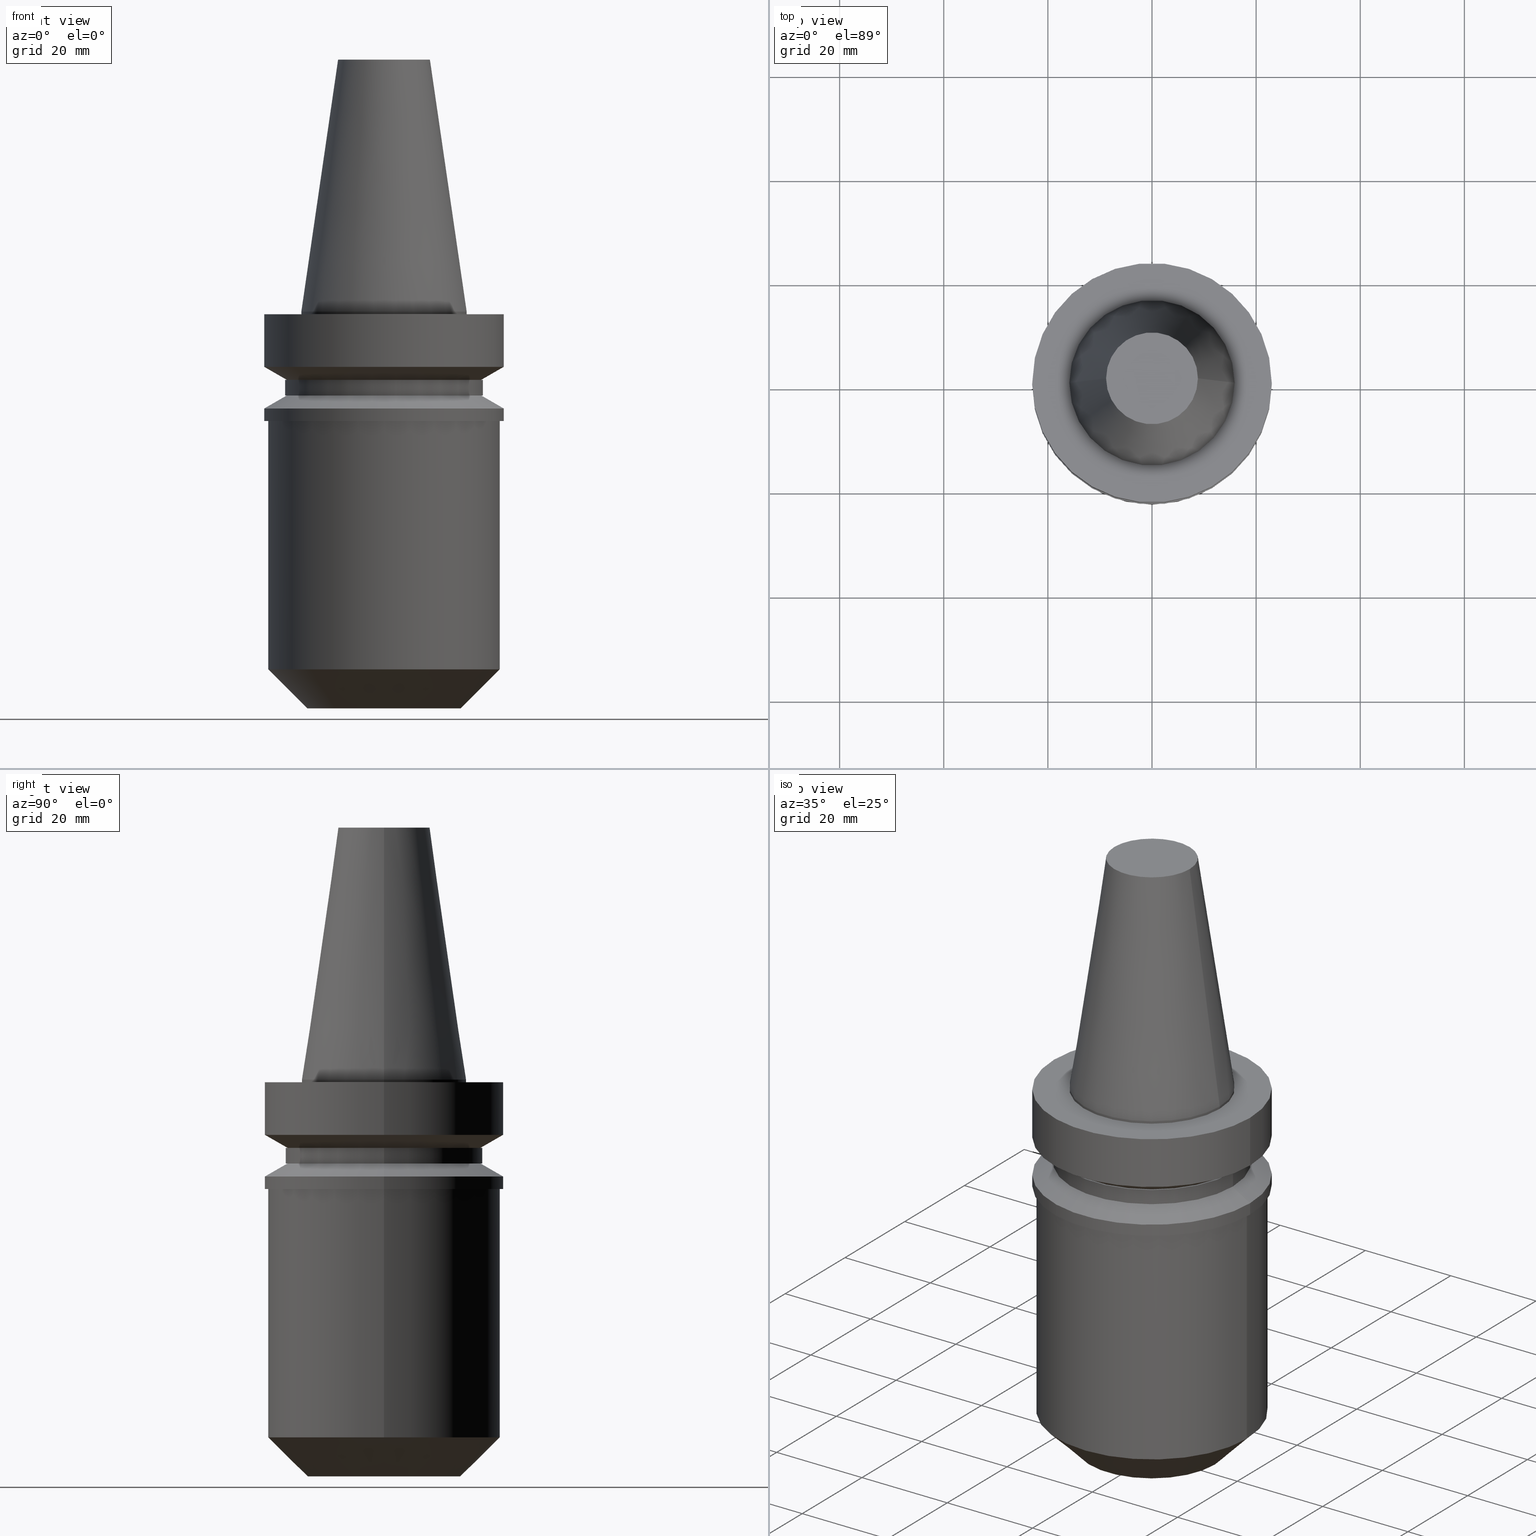
[diagram: canonical four-view strip — front | top / right | iso, engineering-drawing reading convention]
A machine part, canonical four-view strip (front | top / right | iso — engineering-drawing reading convention). The complete STEP part file that produces these views, byte-faithful:
ISO-10303-21;
HEADER;
FILE_DESCRIPTION (( 'STEP AP203' ),
    '1' );
FILE_NAME ('BBT30-EM_750-3.STEP',
    '2022-02-22T21:22:29',
    ( '' ),
    ( '' ),
    'SwSTEP 2.0',
    'SolidWorks 2021',
    '' );
FILE_SCHEMA (( 'CONFIG_CONTROL_DESIGN' ));
ENDSEC;

DATA;
#1 = DIRECTION ( 'NONE',  ( -1.000000000000000000, 0.000000000000000000, 0.000000000000000000 ) ) ;
#2 = CIRCLE ( 'NONE', #198, 23.00000000000000711 ) ;
#3 = VERTEX_POINT ( 'NONE', #55 ) ;
#4 = EDGE_LOOP ( 'NONE', ( #701, #335, #399, #51 ) ) ;
#5 = AXIS2_PLACEMENT_3D ( 'NONE', #263, #88, #95 ) ;
#6 = AXIS2_PLACEMENT_3D ( 'NONE', #618, #242, #553 ) ;
#7 = EDGE_LOOP ( 'NONE', ( #320, #161, #573, #139 ) ) ;
#8 = DIRECTION ( 'NONE',  ( -0.000000000000000000, -0.000000000000000000, 1.000000000000000000 ) ) ;
#9 = CARTESIAN_POINT ( 'NONE',  ( 9.524999999999998579, 0.000000000000000000, -20.99999999999999645 ) ) ;
#10 = PRODUCT ( 'BBT30-EM_750-3', 'BBT30-EM_750-3', '', ( #609 ) ) ;
#11 = DIRECTION ( 'NONE',  ( -0.000000000000000000, -0.000000000000000000, 1.000000000000000000 ) ) ;
#12 = DIRECTION ( 'NONE',  ( 1.000000000000000000, 0.000000000000000000, 0.000000000000000000 ) ) ;
#13 = ADVANCED_FACE ( 'NONE', ( #230 ), #358, .T. ) ;
#14 = DIRECTION ( 'NONE',  ( -1.000000000000000000, 0.000000000000000000, -0.000000000000000000 ) ) ;
#15 = AXIS2_PLACEMENT_3D ( 'NONE', #455, #93, #159 ) ;
#16 = CC_DESIGN_APPROVAL ( #49, ( #197 ) ) ;
#17 = LINE ( 'NONE', #666, #692 ) ;
#18 = CARTESIAN_POINT ( 'NONE',  ( -19.00000000000000000, 2.326828918379970970E-15, -16.10000000000000142 ) ) ;
#19 = AXIS2_PLACEMENT_3D ( 'NONE', #192, #615, #563 ) ;
#20 = VERTEX_POINT ( 'NONE', #773 ) ;
#21 = DIRECTION ( 'NONE',  ( -0.000000000000000000, -0.000000000000000000, 1.000000000000000000 ) ) ;
#22 = CARTESIAN_POINT ( 'NONE',  ( 0.000000000000000000, 0.000000000000000000, -20.99999999999999645 ) ) ;
#23 = ORIENTED_EDGE ( 'NONE', *, *, #261, .F. ) ;
#24 = EDGE_CURVE ( 'NONE', #419, #284, #172, .T. ) ;
#25 = PERSON_AND_ORGANIZATION ( #57, #472 ) ;
#26 = DIRECTION ( 'NONE',  ( -1.000000000000000000, 0.000000000000000000, 0.000000000000000000 ) ) ;
#27 = FACE_OUTER_BOUND ( 'NONE', #83, .T. ) ;
#28 = EDGE_LOOP ( 'NONE', ( #385, #763, #339, #741 ) ) ;
#29 = LOCAL_TIME ( 15, 22, 29.00000000000000000, #86 ) ;
#30 = LINE ( 'NONE', #204, #265 ) ;
#31 = ORIENTED_EDGE ( 'NONE', *, *, #163, .F. ) ;
#32 = CARTESIAN_POINT ( 'NONE',  ( 19.00000000000000000, 0.000000000000000000, -13.10028401263362063 ) ) ;
#33 = LINE ( 'NONE', #269, #523 ) ;
#34 = ORIENTED_EDGE ( 'NONE', *, *, #289, .T. ) ;
#35 = CARTESIAN_POINT ( 'NONE',  ( -23.00000000000000000, 2.816687638038912746E-15, -0.5000000000000004441 ) ) ;
#36 = EDGE_CURVE ( 'NONE', #300, #665, #734, .T. ) ;
#37 = ORIENTED_EDGE ( 'NONE', *, *, #221, .F. ) ;
#38 = APPROVAL_STATUS ( 'not_yet_approved' ) ;
#39 = CARTESIAN_POINT ( 'NONE',  ( 0.000000000000000000, 0.000000000000000000, 0.000000000000000000 ) ) ;
#40 = DIRECTION ( 'NONE',  ( 1.000000000000000000, 0.000000000000000000, 0.000000000000000000 ) ) ;
#41 = ORIENTED_EDGE ( 'NONE', *, *, #68, .F. ) ;
#42 = AXIS2_PLACEMENT_3D ( 'NONE', #400, #641, #510 ) ;
#43 = CARTESIAN_POINT ( 'NONE',  ( -9.524999999999998579, 1.166476076187853627E-15, 0.000000000000000000 ) ) ;
#44 = ORIENTED_EDGE ( 'NONE', *, *, #500, .T. ) ;
#45 = EDGE_CURVE ( 'NONE', #583, #280, #145, .T. ) ;
#46 = CARTESIAN_POINT ( 'NONE',  ( 9.525000000000000355, 0.000000000000000000, -76.20000000000000284 ) ) ;
#47 = CARTESIAN_POINT ( 'NONE',  ( 0.000000000000000000, 0.000000000000000000, -20.99999999999999645 ) ) ;
#48 = MANIFOLD_SOLID_BREP ( 'EM', #421 ) ;
#49 = APPROVAL ( #38, 'UNSPECIFIED' ) ;
#50 = DIRECTION ( 'NONE',  ( -0.000000000000000000, -0.000000000000000000, 1.000000000000000000 ) ) ;
#51 = ORIENTED_EDGE ( 'NONE', *, *, #538, .F. ) ;
#52 = CARTESIAN_POINT ( 'NONE',  ( 0.000000000000000000, 0.000000000000000000, 0.000000000000000000 ) ) ;
#53 = DIRECTION ( 'NONE',  ( 0.000000000000000000, -0.000000000000000000, 1.000000000000000000 ) ) ;
#54 = EDGE_CURVE ( 'NONE', #3, #381, #345, .T. ) ;
#55 = CARTESIAN_POINT ( 'NONE',  ( 15.87500000000000000, 0.000000000000000000, -0.5000000000000004441 ) ) ;
#56 = CARTESIAN_POINT ( 'NONE',  ( 15.87500000000000000, 1.944126793646423238E-15, 0.000000000000000000 ) ) ;
#57 = PERSON ( 'UNSPECIFIED', 'UNSPECIFIED', 'UNSPECIFIED', ('UNSPECIFIED'), ('UNSPECIFIED'), ('UNSPECIFIED') ) ;
#58 = EDGE_LOOP ( 'NONE', ( #23, #643, #698, #466 ) ) ;
#59 = ORIENTED_EDGE ( 'NONE', *, *, #735, .F. ) ;
#60 = CIRCLE ( 'NONE', #581, 23.00000000000000000 ) ;
#61 = CC_DESIGN_APPROVAL ( #749, ( #152 ) ) ;
#62 = VERTEX_POINT ( 'NONE', #591 ) ;
#63 = DIRECTION ( 'NONE',  ( -0.000000000000000000, -0.000000000000000000, 1.000000000000000000 ) ) ;
#64 = VECTOR ( 'NONE', #283, 1000.000000000000000 ) ;
#65 = LINE ( 'NONE', #307, #543 ) ;
#66 = CIRCLE ( 'NONE', #461, 8.816600212367498912 ) ;
#67 = CARTESIAN_POINT ( 'NONE',  ( 22.22500000000000142, 0.000000000000000000, -68.70000000000000284 ) ) ;
#68 = EDGE_CURVE ( 'NONE', #544, #532, #108, .T. ) ;
#69 = CARTESIAN_POINT ( 'NONE',  ( -9.524999999999998579, 1.166476076187853627E-15, -20.99999999999999645 ) ) ;
#70 = CARTESIAN_POINT ( 'NONE',  ( 23.00000000000000000, 0.000000000000000000, -18.60014200631680836 ) ) ;
#71 = EDGE_CURVE ( 'NONE', #381, #722, #393, .T. ) ;
#72 = CARTESIAN_POINT ( 'NONE',  ( 0.000000000000000000, 0.000000000000000000, -76.20000000000000284 ) ) ;
#73 = ORIENTED_EDGE ( 'NONE', *, *, #500, .F. ) ;
#74 = DIRECTION ( 'NONE',  ( 1.000000000000000000, 0.000000000000000000, 0.000000000000000000 ) ) ;
#75 = VECTOR ( 'NONE', #319, 1000.000000000000000 ) ;
#76 = EDGE_CURVE ( 'NONE', #146, #476, #747, .T. ) ;
#77 = ORIENTED_EDGE ( 'NONE', *, *, #211, .T. ) ;
#78 = DATE_AND_TIME ( #451, #350 ) ;
#79 = DIRECTION ( 'NONE',  ( -0.000000000000000000, -0.000000000000000000, 1.000000000000000000 ) ) ;
#80 = EDGE_LOOP ( 'NONE', ( #694, #422, #602, #34 ) ) ;
#81 = CARTESIAN_POINT ( 'NONE',  ( 0.000000000000000000, 0.000000000000000000, -13.10028401263362063 ) ) ;
#82 = CARTESIAN_POINT ( 'NONE',  ( 0.000000000000000000, 0.000000000000000000, 48.39999999999998437 ) ) ;
#83 = EDGE_LOOP ( 'NONE', ( #59, #254, #295, #212 ) ) ;
#84 = CIRCLE ( 'NONE', #531, 22.22500000000000142 ) ;
#85 = LOCAL_TIME ( 15, 22, 29.00000000000000000, #579 ) ;
#86 = COORDINATED_UNIVERSAL_TIME_OFFSET ( 6, 0, .BEHIND. ) ;
#87 = CARTESIAN_POINT ( 'NONE',  ( -23.00000000000000000, 2.816687638038912746E-15, -18.60014200631680836 ) ) ;
#88 = DIRECTION ( 'NONE',  ( -0.000000000000000000, -0.000000000000000000, 1.000000000000000000 ) ) ;
#89 = APPLICATION_CONTEXT ( 'configuration controlled 3d designs of mechanical parts and assemblies' ) ;
#90 = VECTOR ( 'NONE', #347, 1000.000000000000114 ) ;
#91 = EDGE_LOOP ( 'NONE', ( #178, #568, #726, #662 ) ) ;
#92 = AXIS2_PLACEMENT_3D ( 'NONE', #315, #445, #624 ) ;
#93 = DIRECTION ( 'NONE',  ( -0.000000000000000000, -0.000000000000000000, 1.000000000000000000 ) ) ;
#94 = EDGE_CURVE ( 'NONE', #3, #769, #355, .T. ) ;
#95 = DIRECTION ( 'NONE',  ( 1.000000000000000000, 0.000000000000000000, 0.000000000000000000 ) ) ;
#96 = ORIENTED_EDGE ( 'NONE', *, *, #630, .F. ) ;
#97 = PERSON_AND_ORGANIZATION_ROLE ( 'classification_officer' ) ;
#98 = DIRECTION ( 'NONE',  ( 0.000000000000000000, 0.000000000000000000, -1.000000000000000000 ) ) ;
#99 = CC_DESIGN_PERSON_AND_ORGANIZATION_ASSIGNMENT ( #574, #382, ( #152 ) ) ;
#100 = CARTESIAN_POINT ( 'NONE',  ( 0.000000000000000000, 0.000000000000000000, 48.39999999999998437 ) ) ;
#101 = ORIENTED_EDGE ( 'NONE', *, *, #630, .T. ) ;
#102 = VECTOR ( 'NONE', #497, 1000.000000000000000 ) ;
#103 = DIRECTION ( 'NONE',  ( 1.000000000000000000, 0.000000000000000000, 0.000000000000000000 ) ) ;
#104 = FACE_OUTER_BOUND ( 'NONE', #401, .T. ) ;
#105 = ORIENTED_EDGE ( 'NONE', *, *, #412, .T. ) ;
#106 = EDGE_CURVE ( 'NONE', #564, #121, #430, .T. ) ;
#107 = CIRCLE ( 'NONE', #546, 22.22500000000000142 ) ;
#108 = CIRCLE ( 'NONE', #344, 9.524999999999998579 ) ;
#109 = CIRCLE ( 'NONE', #547, 23.00000000000000000 ) ;
#110 = CARTESIAN_POINT ( 'NONE',  ( 0.000000000000000000, 0.000000000000000000, -16.09999999999999076 ) ) ;
#111 = DIRECTION ( 'NONE',  ( 1.000000000000000000, 0.000000000000000000, 0.000000000000000000 ) ) ;
#112 = ORIENTED_EDGE ( 'NONE', *, *, #774, .T. ) ;
#113 = FACE_OUTER_BOUND ( 'NONE', #80, .T. ) ;
#114 = AXIS2_PLACEMENT_3D ( 'NONE', #39, #332, #26 ) ;
#115 = AXIS2_PLACEMENT_3D ( 'NONE', #314, #616, #558 ) ;
#116 = LINE ( 'NONE', #56, #189 ) ;
#117 = EDGE_LOOP ( 'NONE', ( #687, #542 ) ) ;
#118 = DIRECTION ( 'NONE',  ( 0.000000000000000000, 0.000000000000000000, -1.000000000000000000 ) ) ;
#119 = EDGE_CURVE ( 'NONE', #638, #343, #667, .T. ) ;
#120 = ORIENTED_EDGE ( 'NONE', *, *, #515, .F. ) ;
#121 = VERTEX_POINT ( 'NONE', #67 ) ;
#122 = VERTEX_POINT ( 'NONE', #18 ) ;
#123 = ORIENTED_EDGE ( 'NONE', *, *, #54, .F. ) ;
#124 = DIRECTION ( 'NONE',  ( -0.8660254037844344888, 0.000000000000000000, -0.5000000000000072164 ) ) ;
#125 = DIRECTION ( 'NONE',  ( -0.000000000000000000, -0.000000000000000000, 1.000000000000000000 ) ) ;
#126 = CIRCLE ( 'NONE', #565, 15.87500000000000000 ) ;
#127 = SECURITY_CLASSIFICATION ( '', '', #680 ) ;
#128 = FACE_BOUND ( 'NONE', #738, .T. ) ;
#129 = ADVANCED_FACE ( 'NONE', ( #371 ), #191, .T. ) ;
#130 = DIRECTION ( 'NONE',  ( 1.000000000000000000, 0.000000000000000000, 0.000000000000000000 ) ) ;
#131 = AXIS2_PLACEMENT_3D ( 'NONE', #567, #572, #40 ) ;
#132 = DIRECTION ( 'NONE',  ( -0.000000000000000000, -0.000000000000000000, 1.000000000000000000 ) ) ;
#133 = DIRECTION ( 'NONE',  ( -0.000000000000000000, -0.000000000000000000, 1.000000000000000000 ) ) ;
#134 = CARTESIAN_POINT ( 'NONE',  ( 0.000000000000000000, 0.000000000000000000, -0.5000000000000004441 ) ) ;
#135 = CYLINDRICAL_SURFACE ( 'NONE', #310, 22.99999999999999645 ) ;
#136 = CARTESIAN_POINT ( 'NONE',  ( 0.000000000000000000, 0.000000000000000000, 0.000000000000000000 ) ) ;
#137 = EDGE_CURVE ( 'NONE', #635, #343, #281, .T. ) ;
#138 = CARTESIAN_POINT ( 'NONE',  ( 0.000000000000000000, 0.000000000000000000, -0.5000000000000004441 ) ) ;
#139 = ORIENTED_EDGE ( 'NONE', *, *, #106, .F. ) ;
#140 = DESIGN_CONTEXT ( 'detailed design', #89, 'design' ) ;
#141 = APPROVAL_DATE_TIME ( #326, #749 ) ;
#142 = DIRECTION ( 'NONE',  ( 1.000000000000000000, 0.000000000000000000, 0.000000000000000000 ) ) ;
#143 = EDGE_CURVE ( 'NONE', #182, #650, #447, .T. ) ;
#144 = DIRECTION ( 'NONE',  ( 1.000000000000000000, 0.000000000000000000, 0.000000000000000000 ) ) ;
#145 = CIRCLE ( 'NONE', #569, 19.00000000000000000 ) ;
#146 = VERTEX_POINT ( 'NONE', #740 ) ;
#147 = PERSON_AND_ORGANIZATION_ROLE ( 'design_supplier' ) ;
#148 = DIRECTION ( 'NONE',  ( 0.000000000000000000, 0.000000000000000000, -1.000000000000000000 ) ) ;
#149 = EDGE_LOOP ( 'NONE', ( #516, #44, #236, #123 ) ) ;
#150 = FACE_OUTER_BOUND ( 'NONE', #91, .T. ) ;
#151 = ORIENTED_EDGE ( 'NONE', *, *, #188, .F. ) ;
#152 = PRODUCT_DEFINITION_FORMATION_WITH_SPECIFIED_SOURCE ( 'ANY', '', #10, .NOT_KNOWN. ) ;
#153 = ADVANCED_FACE ( 'NONE', ( #27 ), #432, .T. ) ;
#154 = APPROVAL_DATE_TIME ( #276, #49 ) ;
#155 = DIRECTION ( 'NONE',  ( -1.000000000000000000, 0.000000000000000000, -0.000000000000000000 ) ) ;
#156 = CARTESIAN_POINT ( 'NONE',  ( 0.000000000000000000, 0.000000000000000000, 48.39999999999999858 ) ) ;
#157 = ORIENTED_EDGE ( 'NONE', *, *, #483, .F. ) ;
#158 = DATE_AND_TIME ( #391, #494 ) ;
#159 = DIRECTION ( 'NONE',  ( 1.000000000000000000, 0.000000000000000000, 0.000000000000000000 ) ) ;
#160 = DIRECTION ( 'NONE',  ( 1.000000000000000000, 0.000000000000000000, 0.000000000000000000 ) ) ;
#161 = ORIENTED_EDGE ( 'NONE', *, *, #711, .T. ) ;
#162 = CARTESIAN_POINT ( 'NONE',  ( 0.000000000000000000, 0.000000000000000000, 48.39999999999998437 ) ) ;
#163 = EDGE_CURVE ( 'NONE', #564, #20, #435, .T. ) ;
#164 = EDGE_LOOP ( 'NONE', ( #487, #157 ) ) ;
#165 = FACE_BOUND ( 'NONE', #363, .T. ) ;
#166 = DIRECTION ( 'NONE',  ( 1.000000000000000000, 0.000000000000000000, 0.000000000000000000 ) ) ;
#167 = VERTEX_POINT ( 'NONE', #249 ) ;
#168 = AXIS2_PLACEMENT_3D ( 'NONE', #685, #148, #384 ) ;
#169 = VECTOR ( 'NONE', #556, 1000.000000000000000 ) ;
#170 = ORIENTED_EDGE ( 'NONE', *, *, #137, .F. ) ;
#171 = DIRECTION ( 'NONE',  ( 0.000000000000000000, -0.000000000000000000, 1.000000000000000000 ) ) ;
#172 = LINE ( 'NONE', #485, #486 ) ;
#173 = ADVANCED_FACE ( 'NONE', ( #257, #437 ), #559, .F. ) ;
#174 = PLANE ( 'NONE',  #619 ) ;
#175 = VECTOR ( 'NONE', #124, 1000.000000000000000 ) ;
#176 = DIRECTION ( 'NONE',  ( -0.000000000000000000, -0.000000000000000000, 1.000000000000000000 ) ) ;
#177 = DIRECTION ( 'NONE',  ( 1.000000000000000000, 0.000000000000000000, 0.000000000000000000 ) ) ;
#178 = ORIENTED_EDGE ( 'NONE', *, *, #334, .F. ) ;
#179 = LINE ( 'NONE', #285, #764 ) ;
#180 = CARTESIAN_POINT ( 'NONE',  ( -15.87500000000000000, 0.000000000000000000, 0.000000000000000000 ) ) ;
#181 = VERTEX_POINT ( 'NONE', #745 ) ;
#182 = VERTEX_POINT ( 'NONE', #70 ) ;
#183 = ADVANCED_FACE ( 'NONE', ( #128, #366 ), #610, .F. ) ;
#184 = EDGE_LOOP ( 'NONE', ( #406, #41 ) ) ;
#185 = PERSON_AND_ORGANIZATION ( #57, #472 ) ;
#186 = VECTOR ( 'NONE', #585, 1000.000000000000000 ) ;
#187 = CARTESIAN_POINT ( 'NONE',  ( 0.000000000000000000, 14.72500000000008136, -76.20000000000000284 ) ) ;
#188 = EDGE_CURVE ( 'NONE', #181, #419, #660, .T. ) ;
#189 = VECTOR ( 'NONE', #288, 1000.000000000000114 ) ;
#190 = CARTESIAN_POINT ( 'NONE',  ( 0.000000000000000000, 0.000000000000000000, -18.60014200631680836 ) ) ;
#191 = CONICAL_SURFACE ( 'NONE', #205, 14.72500000000008136, 0.7853981633974425058 ) ;
#192 = CARTESIAN_POINT ( 'NONE',  ( 0.000000000000000000, 0.000000000000000000, -76.20000000000000284 ) ) ;
#193 = EDGE_CURVE ( 'NONE', #532, #544, #330, .T. ) ;
#194 = LINE ( 'NONE', #633, #200 ) ;
#195 = DIRECTION ( 'NONE',  ( 1.000000000000000000, 0.000000000000000000, 0.000000000000000000 ) ) ;
#196 = VERTEX_POINT ( 'NONE', #621 ) ;
#197 = PRODUCT_DEFINITION ( 'UNKNOWN', '', #152, #140 ) ;
#198 = AXIS2_PLACEMENT_3D ( 'NONE', #443, #132, #142 ) ;
#199 = DIRECTION ( 'NONE',  ( -0.000000000000000000, -0.000000000000000000, 1.000000000000000000 ) ) ;
#200 = VECTOR ( 'NONE', #748, 1000.000000000000000 ) ;
#201 = ORIENTED_EDGE ( 'NONE', *, *, #589, .F. ) ;
#202 = CARTESIAN_POINT ( 'NONE',  ( 9.524999999999998579, 0.000000000000000000, 0.000000000000000000 ) ) ;
#203 = CIRCLE ( 'NONE', #649, 19.00000000000000000 ) ;
#204 = CARTESIAN_POINT ( 'NONE',  ( 23.00000000000000000, 2.816687638038912352E-15, -18.60014200631680836 ) ) ;
#205 = AXIS2_PLACEMENT_3D ( 'NONE', #308, #79, #375 ) ;
#206 = AXIS2_PLACEMENT_3D ( 'NONE', #100, #752, #398 ) ;
#207 = EDGE_LOOP ( 'NONE', ( #511, #331 ) ) ;
#208 = APPROVAL_DATE_TIME ( #78, #552 ) ;
#209 = CARTESIAN_POINT ( 'NONE',  ( 0.000000000000000000, 0.000000000000000000, 0.000000000000000000 ) ) ;
#210 = CYLINDRICAL_SURFACE ( 'NONE', #206, 23.00000000000000355 ) ;
#211 = EDGE_CURVE ( 'NONE', #62, #450, #612, .T. ) ;
#212 = ORIENTED_EDGE ( 'NONE', *, *, #548, .F. ) ;
#213 = DIRECTION ( 'NONE',  ( 1.000000000000000000, 0.000000000000000000, 0.000000000000000000 ) ) ;
#214 = ORIENTED_EDGE ( 'NONE', *, *, #459, .F. ) ;
#215 = CONICAL_SURFACE ( 'NONE', #373, 15.87500000000000000, 0.1448138426689024039 ) ;
#216 = CC_DESIGN_PERSON_AND_ORGANIZATION_ASSIGNMENT ( #185, #668, ( #10 ) ) ;
#217 = PLANE ( 'NONE',  #645 ) ;
#218 = DIRECTION ( 'NONE',  ( -0.000000000000000000, -0.000000000000000000, 1.000000000000000000 ) ) ;
#219 = ORIENTED_EDGE ( 'NONE', *, *, #416, .T. ) ;
#220 = AXIS2_PLACEMENT_3D ( 'NONE', #368, #732, #74 ) ;
#221 = EDGE_CURVE ( 'NONE', #343, #635, #109, .T. ) ;
#222 = CARTESIAN_POINT ( 'NONE',  ( 0.000000000000000000, 0.000000000000000000, -76.20000000000000284 ) ) ;
#223 = EDGE_LOOP ( 'NONE', ( #529, #622, #458, #290 ) ) ;
#224 = DIRECTION ( 'NONE',  ( 1.000000000000000000, 0.000000000000000000, 0.000000000000000000 ) ) ;
#225 = EDGE_LOOP ( 'NONE', ( #560, #484, #394, #37 ) ) ;
#226 = ORIENTED_EDGE ( 'NONE', *, *, #334, .T. ) ;
#227 = AXIS2_PLACEMENT_3D ( 'NONE', #348, #714, #361 ) ;
#228 = FACE_OUTER_BOUND ( 'NONE', #184, .T. ) ;
#229 = FACE_BOUND ( 'NONE', #608, .T. ) ;
#230 = FACE_OUTER_BOUND ( 'NONE', #4, .T. ) ;
#231 = ADVANCED_FACE ( 'NONE', ( #440 ), #677, .T. ) ;
#232 = EDGE_LOOP ( 'NONE', ( #426, #753, #112, #313 ) ) ;
#233 = ORIENTED_EDGE ( 'NONE', *, *, #515, .T. ) ;
#234 = FACE_OUTER_BOUND ( 'NONE', #232, .T. ) ;
#235 = AXIS2_PLACEMENT_3D ( 'NONE', #551, #244, #495 ) ;
#236 = ORIENTED_EDGE ( 'NONE', *, *, #71, .F. ) ;
#237 = ORIENTED_EDGE ( 'NONE', *, *, #397, .T. ) ;
#238 = CARTESIAN_POINT ( 'NONE',  ( 0.000000000000000000, 0.000000000000000000, 0.000000000000000000 ) ) ;
#239 = ADVANCED_FACE ( 'NONE', ( #341 ), #210, .T. ) ;
#240 = CYLINDRICAL_SURFACE ( 'NONE', #679, 22.22500000000000142 ) ;
#241 = EDGE_LOOP ( 'NONE', ( #219, #105, #120, #481 ) ) ;
#242 = DIRECTION ( 'NONE',  ( -0.000000000000000000, -0.000000000000000000, 1.000000000000000000 ) ) ;
#243 = CARTESIAN_POINT ( 'NONE',  ( 0.000000000000000000, 0.000000000000000000, -10.60014200631680126 ) ) ;
#244 = DIRECTION ( 'NONE',  ( -0.000000000000000000, -0.000000000000000000, 1.000000000000000000 ) ) ;
#245 = APPROVAL_PERSON_ORGANIZATION ( #25, #552, #460 ) ;
#246 = CARTESIAN_POINT ( 'NONE',  ( 0.000000000000000000, 0.000000000000000000, -21.00000000000000355 ) ) ;
#247 =( LENGTH_UNIT ( ) NAMED_UNIT ( * ) SI_UNIT ( .MILLI., .METRE. ) );
#248 = AXIS2_PLACEMENT_3D ( 'NONE', #628, #750, #634 ) ;
#249 = CARTESIAN_POINT ( 'NONE',  ( -22.22500000000000142, 2.721777511104992849E-15, -68.70000000000000284 ) ) ;
#250 = ORIENTED_EDGE ( 'NONE', *, *, #275, .F. ) ;
#251 = EDGE_CURVE ( 'NONE', #325, #182, #30, .T. ) ;
#252 = CARTESIAN_POINT ( 'NONE',  ( -23.00000000000000000, 0.000000000000000000, -18.60014200631680836 ) ) ;
#253 = CARTESIAN_POINT ( 'NONE',  ( 14.72500000000008136, 0.000000000000000000, -76.20000000000000284 ) ) ;
#254 = ORIENTED_EDGE ( 'NONE', *, *, #483, .T. ) ;
#255 = APPROVAL_STATUS ( 'not_yet_approved' ) ;
#256 = CARTESIAN_POINT ( 'NONE',  ( 0.000000000000000000, 0.000000000000000000, 48.39999999999998437 ) ) ;
#257 = FACE_OUTER_BOUND ( 'NONE', #390, .T. ) ;
#258 = ORIENTED_EDGE ( 'NONE', *, *, #221, .T. ) ;
#259 = PERSON_AND_ORGANIZATION ( #57, #472 ) ;
#260 = DIRECTION ( 'NONE',  ( 1.000000000000000000, 0.000000000000000000, 0.000000000000000000 ) ) ;
#261 = EDGE_CURVE ( 'NONE', #506, #682, #66, .T. ) ;
#262 = AXIS2_PLACEMENT_3D ( 'NONE', #756, #218, #463 ) ;
#263 = CARTESIAN_POINT ( 'NONE',  ( 0.000000000000000000, 0.000000000000000000, -16.09999999999999076 ) ) ;
#264 = VECTOR ( 'NONE', #297, 1000.000000000000000 ) ;
#265 = VECTOR ( 'NONE', #582, 1000.000000000000000 ) ;
#266 = ORIENTED_EDGE ( 'NONE', *, *, #696, .F. ) ;
#267 = CARTESIAN_POINT ( 'NONE',  ( -23.00000000000000711, 2.816687638038913141E-15, -10.60014200631680126 ) ) ;
#268 = PRODUCT_RELATED_PRODUCT_CATEGORY ( 'detail', '', ( #10 ) ) ;
#269 = CARTESIAN_POINT ( 'NONE',  ( 19.00000000000000000, 0.000000000000000000, 48.39999999999998437 ) ) ;
#270 = ORIENTED_EDGE ( 'NONE', *, *, #143, .T. ) ;
#271 = DIRECTION ( 'NONE',  ( -0.000000000000000000, -0.000000000000000000, 1.000000000000000000 ) ) ;
#272 = DIRECTION ( 'NONE',  ( -0.000000000000000000, -0.000000000000000000, 1.000000000000000000 ) ) ;
#273 = EDGE_LOOP ( 'NONE', ( #101, #761 ) ) ;
#274 = AXIS2_PLACEMENT_3D ( 'NONE', #243, #360, #130 ) ;
#275 = EDGE_CURVE ( 'NONE', #325, #625, #695, .T. ) ;
#276 = DATE_AND_TIME ( #317, #85 ) ;
#277 = FACE_OUTER_BOUND ( 'NONE', #588, .T. ) ;
#278 = CARTESIAN_POINT ( 'NONE',  ( 0.000000000000000000, 0.000000000000000000, -21.00000000000000355 ) ) ;
#279 = CONICAL_SURFACE ( 'NONE', #248, 18.66962701892216359, 1.047197551196590082 ) ;
#280 = VERTEX_POINT ( 'NONE', #329 ) ;
#281 = CIRCLE ( 'NONE', #6, 23.00000000000000000 ) ;
#282 = FACE_OUTER_BOUND ( 'NONE', #207, .T. ) ;
#283 = DIRECTION ( 'NONE',  ( -0.000000000000000000, -0.000000000000000000, 1.000000000000000000 ) ) ;
#284 = VERTEX_POINT ( 'NONE', #337 ) ;
#285 = CARTESIAN_POINT ( 'NONE',  ( 22.99999999999999645, 0.000000000000000000, 48.39999999999998437 ) ) ;
#286 = DIRECTION ( 'NONE',  ( -0.000000000000000000, -0.000000000000000000, 1.000000000000000000 ) ) ;
#287 = VECTOR ( 'NONE', #63, 1000.000000000000000 ) ;
#288 = DIRECTION ( 'NONE',  ( 0.1443082234293875943, 1.767266039134405996E-17, -0.9895327870518761948 ) ) ;
#289 = EDGE_CURVE ( 'NONE', #665, #300, #291, .T. ) ;
#290 = ORIENTED_EDGE ( 'NONE', *, *, #490, .F. ) ;
#291 = CIRCLE ( 'NONE', #131, 22.22500000000000142 ) ;
#292 = AXIS2_PLACEMENT_3D ( 'NONE', #305, #550, #14 ) ;
#293 = DIRECTION ( 'NONE',  ( 1.000000000000000000, 0.000000000000000000, 0.000000000000000000 ) ) ;
#294 = EDGE_CURVE ( 'NONE', #20, #564, #659, .T. ) ;
#295 = ORIENTED_EDGE ( 'NONE', *, *, #352, .T. ) ;
#296 = EDGE_LOOP ( 'NONE', ( #664, #415 ) ) ;
#297 = DIRECTION ( 'NONE',  ( -0.000000000000000000, -0.000000000000000000, 1.000000000000000000 ) ) ;
#298 = EDGE_CURVE ( 'NONE', #450, #62, #420, .T. ) ;
#299 = CIRCLE ( 'NONE', #15, 15.87500000000000000 ) ;
#300 = VERTEX_POINT ( 'NONE', #333 ) ;
#301 = ORIENTED_EDGE ( 'NONE', *, *, #416, .F. ) ;
#302 = CYLINDRICAL_SURFACE ( 'NONE', #115, 9.524999999999998579 ) ;
#303 = AXIS2_PLACEMENT_3D ( 'NONE', #22, #133, #498 ) ;
#304 = DIRECTION ( 'NONE',  ( -0.000000000000000000, -0.000000000000000000, 1.000000000000000000 ) ) ;
#305 = CARTESIAN_POINT ( 'NONE',  ( 0.000000000000000000, 18.66962701892216359, -13.10028401263362063 ) ) ;
#306 = LINE ( 'NONE', #613, #287 ) ;
#307 = CARTESIAN_POINT ( 'NONE',  ( -15.87500000000000000, 1.944126793646423238E-15, 48.39999999999998437 ) ) ;
#308 = CARTESIAN_POINT ( 'NONE',  ( 0.000000000000000000, 0.000000000000000000, -76.20000000000000284 ) ) ;
#309 = DIRECTION ( 'NONE',  ( 1.000000000000000000, 0.000000000000000000, 0.000000000000000000 ) ) ;
#310 = AXIS2_PLACEMENT_3D ( 'NONE', #431, #8, #12 ) ;
#311 = ADVANCED_FACE ( 'NONE', ( #150 ), #449, .F. ) ;
#312 = DIRECTION ( 'NONE',  ( 1.000000000000000000, 0.000000000000000000, 0.000000000000000000 ) ) ;
#313 = ORIENTED_EDGE ( 'NONE', *, *, #538, .T. ) ;
#314 = CARTESIAN_POINT ( 'NONE',  ( 0.000000000000000000, 0.000000000000000000, 0.000000000000000000 ) ) ;
#315 = CARTESIAN_POINT ( 'NONE',  ( 0.000000000000000000, 0.000000000000000000, -18.60014200631680836 ) ) ;
#316 = ORIENTED_EDGE ( 'NONE', *, *, #561, .F. ) ;
#317 = CALENDAR_DATE ( 2022, 22, 2 ) ;
#318 = FACE_OUTER_BOUND ( 'NONE', #58, .T. ) ;
#319 = DIRECTION ( 'NONE',  ( -0.000000000000000000, -0.000000000000000000, 1.000000000000000000 ) ) ;
#320 = ORIENTED_EDGE ( 'NONE', *, *, #163, .T. ) ;
#321 = ADVANCED_FACE ( 'NONE', ( #104 ), #324, .T. ) ;
#322 = CALENDAR_DATE ( 2022, 22, 2 ) ;
#323 = AXIS2_PLACEMENT_3D ( 'NONE', #467, #118, #356 ) ;
#324 = CYLINDRICAL_SURFACE ( 'NONE', #733, 19.00000000000000000 ) ;
#325 = VERTEX_POINT ( 'NONE', #760 ) ;
#326 = DATE_AND_TIME ( #442, #29 ) ;
#327 = CARTESIAN_POINT ( 'NONE',  ( 0.000000000000000000, 0.000000000000000000, 0.000000000000000000 ) ) ;
#328 = CIRCLE ( 'NONE', #534, 18.66962701892216359 ) ;
#329 = CARTESIAN_POINT ( 'NONE',  ( -19.00000000000000000, 2.326828918379970970E-15, -13.10028401263362063 ) ) ;
#330 = CIRCLE ( 'NONE', #303, 9.524999999999998579 ) ;
#331 = ORIENTED_EDGE ( 'NONE', *, *, #298, .F. ) ;
#332 = DIRECTION ( 'NONE',  ( 0.000000000000000000, 0.000000000000000000, -1.000000000000000000 ) ) ;
#333 = CARTESIAN_POINT ( 'NONE',  ( -22.22500000000000142, 2.721777511104992849E-15, -20.99999999999999645 ) ) ;
#334 = EDGE_CURVE ( 'NONE', #146, #544, #646, .T. ) ;
#335 = ORIENTED_EDGE ( 'NONE', *, *, #298, .T. ) ;
#336 = DATE_TIME_ROLE ( 'creation_date' ) ;
#337 = CARTESIAN_POINT ( 'NONE',  ( 23.00000000000000711, 0.000000000000000000, -10.60014200631680126 ) ) ;
#338 = ADVANCED_FACE ( 'NONE', ( #456 ), #528, .F. ) ;
#339 = ORIENTED_EDGE ( 'NONE', *, *, #24, .T. ) ;
#340 = CARTESIAN_POINT ( 'NONE',  ( -14.72500000000008136, 1.803292411744487521E-15, -76.20000000000000284 ) ) ;
#341 = FACE_OUTER_BOUND ( 'NONE', #557, .T. ) ;
#342 = AXIS2_PLACEMENT_3D ( 'NONE', #222, #465, #453 ) ;
#343 = VERTEX_POINT ( 'NONE', #35 ) ;
#344 = AXIS2_PLACEMENT_3D ( 'NONE', #47, #286, #177 ) ;
#345 = LINE ( 'NONE', #718, #264 ) ;
#346 = ADVANCED_FACE ( 'NONE', ( #389 ), #279, .T. ) ;
#347 = DIRECTION ( 'NONE',  ( -0.1443082234293875943, 0.000000000000000000, -0.9895327870518761948 ) ) ;
#348 = CARTESIAN_POINT ( 'NONE',  ( 0.000000000000000000, 0.000000000000000000, -20.99999999999999645 ) ) ;
#349 = CIRCLE ( 'NONE', #235, 19.00000000000000000 ) ;
#350 = LOCAL_TIME ( 15, 22, 29.00000000000000000, #512 ) ;
#351 = CYLINDRICAL_SURFACE ( 'NONE', #362, 22.22500000000000142 ) ;
#352 = EDGE_CURVE ( 'NONE', #196, #583, #33, .T. ) ;
#353 = PLANE ( 'NONE',  #717 ) ;
#354 = ORIENTED_EDGE ( 'NONE', *, *, #143, .F. ) ;
#355 = CIRCLE ( 'NONE', #475, 15.87500000000000000 ) ;
#356 = DIRECTION ( 'NONE',  ( -1.000000000000000000, 0.000000000000000000, 0.000000000000000000 ) ) ;
#357 = ADVANCED_FACE ( 'NONE', ( #514 ), #721, .T. ) ;
#358 = CYLINDRICAL_SURFACE ( 'NONE', #587, 22.99999999999999645 ) ;
#359 = ORIENTED_EDGE ( 'NONE', *, *, #137, .T. ) ;
#360 = DIRECTION ( 'NONE',  ( -0.000000000000000000, -0.000000000000000000, 1.000000000000000000 ) ) ;
#361 = DIRECTION ( 'NONE',  ( 1.000000000000000000, 0.000000000000000000, 0.000000000000000000 ) ) ;
#362 = AXIS2_PLACEMENT_3D ( 'NONE', #52, #715, #657 ) ;
#363 = EDGE_LOOP ( 'NONE', ( #502, #757 ) ) ;
#364 = AXIS2_PLACEMENT_3D ( 'NONE', #238, #675, #428 ) ;
#365 = DIRECTION ( 'NONE',  ( -0.000000000000000000, -0.000000000000000000, 1.000000000000000000 ) ) ;
#366 = FACE_OUTER_BOUND ( 'NONE', #117, .T. ) ;
#367 = DIRECTION ( 'NONE',  ( -0.000000000000000000, -0.000000000000000000, 1.000000000000000000 ) ) ;
#368 = CARTESIAN_POINT ( 'NONE',  ( 0.000000000000000000, 0.000000000000000000, 48.39999999999998437 ) ) ;
#369 = PRODUCT_DEFINITION_SHAPE ( 'NONE', 'NONE',  #197 ) ;
#370 = CARTESIAN_POINT ( 'NONE',  ( 8.816600212367498912, 1.511924458295098338E-15, 48.39999999999999858 ) ) ;
#371 = FACE_OUTER_BOUND ( 'NONE', #648, .T. ) ;
#372 = UNCERTAINTY_MEASURE_WITH_UNIT (LENGTH_MEASURE( 1.000000000000000082E-05 ), #247, 'distance_accuracy_value', 'NONE');
#373 = AXIS2_PLACEMENT_3D ( 'NONE', #209, #98, #504 ) ;
#374 = EDGE_CURVE ( 'NONE', #476, #146, #474, .T. ) ;
#375 = DIRECTION ( 'NONE',  ( 1.000000000000000000, 0.000000000000000000, 0.000000000000000000 ) ) ;
#376 = EDGE_LOOP ( 'NONE', ( #214, #96, #723, #525 ) ) ;
#377 = AXIS2_PLACEMENT_3D ( 'NONE', #577, #693, #519 ) ;
#378 = LINE ( 'NONE', #669, #518 ) ;
#379 = DIRECTION ( 'NONE',  ( 1.000000000000000000, 0.000000000000000000, 0.000000000000000000 ) ) ;
#380 = EDGE_CURVE ( 'NONE', #121, #167, #107, .T. ) ;
#381 = VERTEX_POINT ( 'NONE', #601 ) ;
#382 = PERSON_AND_ORGANIZATION_ROLE ( 'creator' ) ;
#383 = CARTESIAN_POINT ( 'NONE',  ( 23.00000000000000000, 0.000000000000000000, -0.5000000000000004441 ) ) ;
#384 = DIRECTION ( 'NONE',  ( -1.000000000000000000, 0.000000000000000000, -0.000000000000000000 ) ) ;
#385 = ORIENTED_EDGE ( 'NONE', *, *, #412, .F. ) ;
#386 = APPROVAL_STATUS ( 'not_yet_approved' ) ;
#387 = DIRECTION ( 'NONE',  ( 1.000000000000000000, 0.000000000000000000, 0.000000000000000000 ) ) ;
#388 = CIRCLE ( 'NONE', #274, 23.00000000000000711 ) ;
#389 = FACE_OUTER_BOUND ( 'NONE', #28, .T. ) ;
#390 = EDGE_LOOP ( 'NONE', ( #31, #710 ) ) ;
#391 = CALENDAR_DATE ( 2022, 22, 2 ) ;
#392 = DIRECTION ( 'NONE',  ( -0.000000000000000000, -0.000000000000000000, 1.000000000000000000 ) ) ;
#393 = CIRCLE ( 'NONE', #508, 15.87500000000000000 ) ;
#394 = ORIENTED_EDGE ( 'NONE', *, *, #561, .T. ) ;
#395 = APPROVAL_ROLE ( '' ) ;
#396 = DIRECTION ( 'NONE',  ( -0.000000000000000000, -0.000000000000000000, 1.000000000000000000 ) ) ;
#397 = EDGE_CURVE ( 'NONE', #196, #122, #203, .T. ) ;
#398 = DIRECTION ( 'NONE',  ( 1.000000000000000000, 0.000000000000000000, 0.000000000000000000 ) ) ;
#399 = ORIENTED_EDGE ( 'NONE', *, *, #691, .T. ) ;
#400 = CARTESIAN_POINT ( 'NONE',  ( 0.000000000000000000, 0.000000000000000000, 0.000000000000000000 ) ) ;
#401 = EDGE_LOOP ( 'NONE', ( #237, #454, #629, #746 ) ) ;
#402 =( GEOMETRIC_REPRESENTATION_CONTEXT ( 3 ) GLOBAL_UNCERTAINTY_ASSIGNED_CONTEXT ( ( #372 ) ) GLOBAL_UNIT_ASSIGNED_CONTEXT ( ( #247, #739, #724 ) ) REPRESENTATION_CONTEXT ( 'NONE', 'WORKASPACE' ) );
#403 = DIRECTION ( 'NONE',  ( 0.000000000000000000, -0.000000000000000000, 1.000000000000000000 ) ) ;
#404 = CARTESIAN_POINT ( 'NONE',  ( 18.66962701892216359, 0.000000000000000000, -13.10028401263362063 ) ) ;
#405 = AXIS2_PLACEMENT_3D ( 'NONE', #72, #681, #379 ) ;
#406 = ORIENTED_EDGE ( 'NONE', *, *, #193, .F. ) ;
#407 = AXIS2_PLACEMENT_3D ( 'NONE', #82, #586, #160 ) ;
#408 = ADVANCED_FACE ( 'NONE', ( #713 ), #770, .T. ) ;
#409 = DIRECTION ( 'NONE',  ( 1.000000000000000000, 0.000000000000000000, 0.000000000000000000 ) ) ;
#410 = DIRECTION ( 'NONE',  ( -0.000000000000000000, -0.000000000000000000, 1.000000000000000000 ) ) ;
#411 = ORIENTED_EDGE ( 'NONE', *, *, #589, .T. ) ;
#412 = EDGE_CURVE ( 'NONE', #181, #638, #705, .T. ) ;
#413 = CARTESIAN_POINT ( 'NONE',  ( 22.22500000000000142, 0.000000000000000000, -20.99999999999999645 ) ) ;
#414 = DIRECTION ( 'NONE',  ( -0.8660254037844348218, 1.060575238724902231E-16, 0.5000000000000066613 ) ) ;
#415 = ORIENTED_EDGE ( 'NONE', *, *, #76, .T. ) ;
#416 = EDGE_CURVE ( 'NONE', #419, #181, #328, .T. ) ;
#417 = LINE ( 'NONE', #180, #90 ) ;
#418 = APPLICATION_CONTEXT ( 'configuration controlled 3d designs of mechanical parts and assemblies' ) ;
#419 = VERTEX_POINT ( 'NONE', #404 ) ;
#420 = CIRCLE ( 'NONE', #599, 22.99999999999999289 ) ;
#421 = CLOSED_SHELL ( 'NONE', ( #766, #357, #526, #231, #239, #647, #321, #469, #758, #598, #720, #642, #338, #13, #686, #479, #153, #183, #346, #607, #576, #408, #676, #129, #173, #311, #663 ) ) ;
#422 = ORIENTED_EDGE ( 'NONE', *, *, #696, .T. ) ;
#423 = CARTESIAN_POINT ( 'NONE',  ( 0.000000000000000000, 0.000000000000000000, -68.70000000000000284 ) ) ;
#424 = DIRECTION ( 'NONE',  ( 1.000000000000000000, 0.000000000000000000, 0.000000000000000000 ) ) ;
#425 = CC_DESIGN_DATE_AND_TIME_ASSIGNMENT ( #158, #336, ( #197 ) ) ;
#426 = ORIENTED_EDGE ( 'NONE', *, *, #251, .F. ) ;
#427 = ORIENTED_EDGE ( 'NONE', *, *, #54, .T. ) ;
#428 = DIRECTION ( 'NONE',  ( 1.000000000000000000, 0.000000000000000000, 0.000000000000000000 ) ) ;
#429 = FACE_OUTER_BOUND ( 'NONE', #223, .T. ) ;
#430 = LINE ( 'NONE', #253, #169 ) ;
#431 = CARTESIAN_POINT ( 'NONE',  ( 0.000000000000000000, 0.000000000000000000, 48.39999999999998437 ) ) ;
#432 = CYLINDRICAL_SURFACE ( 'NONE', #220, 19.00000000000000000 ) ;
#433 = EDGE_CURVE ( 'NONE', #625, #325, #768, .T. ) ;
#434 = AXIS2_PLACEMENT_3D ( 'NONE', #110, #176, #593 ) ;
#435 = CIRCLE ( 'NONE', #19, 14.72500000000008136 ) ;
#436 = APPLICATION_PROTOCOL_DEFINITION ( 'international standard', 'config_control_design', 1994, #89 ) ;
#437 = FACE_BOUND ( 'NONE', #296, .T. ) ;
#438 = APPLICATION_PROTOCOL_DEFINITION ( 'international standard', 'config_control_design', 1994, #418 ) ;
#439 = CARTESIAN_POINT ( 'NONE',  ( 14.72500000000008136, 0.000000000000000000, -76.20000000000000284 ) ) ;
#440 = FACE_OUTER_BOUND ( 'NONE', #149, .T. ) ;
#441 = ORIENTED_EDGE ( 'NONE', *, *, #106, .T. ) ;
#442 = CALENDAR_DATE ( 2022, 22, 2 ) ;
#443 = CARTESIAN_POINT ( 'NONE',  ( 0.000000000000000000, 0.000000000000000000, -10.60014200631680126 ) ) ;
#444 = EDGE_CURVE ( 'NONE', #682, #722, #417, .T. ) ;
#445 = DIRECTION ( 'NONE',  ( -0.000000000000000000, -0.000000000000000000, 1.000000000000000000 ) ) ;
#446 = ORIENTED_EDGE ( 'NONE', *, *, #503, .T. ) ;
#447 = CIRCLE ( 'NONE', #92, 23.00000000000000000 ) ;
#448 = CC_DESIGN_DATE_AND_TIME_ASSIGNMENT ( #623, #562, ( #127 ) ) ;
#449 = CYLINDRICAL_SURFACE ( 'NONE', #42, 9.524999999999998579 ) ;
#450 = VERTEX_POINT ( 'NONE', #477 ) ;
#451 = CALENDAR_DATE ( 2022, 22, 2 ) ;
#452 = CARTESIAN_POINT ( 'NONE',  ( -18.66962701892216359, 0.000000000000000000, -16.09999999999999076 ) ) ;
#453 = DIRECTION ( 'NONE',  ( 1.000000000000000000, 0.000000000000000000, 0.000000000000000000 ) ) ;
#454 = ORIENTED_EDGE ( 'NONE', *, *, #735, .T. ) ;
#455 = CARTESIAN_POINT ( 'NONE',  ( 0.000000000000000000, 0.000000000000000000, -0.5000000000000004441 ) ) ;
#456 = FACE_OUTER_BOUND ( 'NONE', #273, .T. ) ;
#457 = CC_DESIGN_SECURITY_CLASSIFICATION ( #127, ( #152 ) ) ;
#458 = ORIENTED_EDGE ( 'NONE', *, *, #36, .T. ) ;
#459 = EDGE_CURVE ( 'NONE', #506, #381, #116, .T. ) ;
#460 = APPROVAL_ROLE ( '' ) ;
#461 = AXIS2_PLACEMENT_3D ( 'NONE', #156, #700, #637 ) ;
#462 = CARTESIAN_POINT ( 'NONE',  ( 0.000000000000000000, 23.00000000000000000, -0.4999999999999995559 ) ) ;
#463 = DIRECTION ( 'NONE',  ( 1.000000000000000000, 0.000000000000000000, 0.000000000000000000 ) ) ;
#464 = ORIENTED_EDGE ( 'NONE', *, *, #711, .F. ) ;
#465 = DIRECTION ( 'NONE',  ( -0.000000000000000000, -0.000000000000000000, 1.000000000000000000 ) ) ;
#466 = ORIENTED_EDGE ( 'NONE', *, *, #444, .F. ) ;
#467 = CARTESIAN_POINT ( 'NONE',  ( 0.000000000000000000, 0.000000000000000000, -18.60014200631680836 ) ) ;
#468 = DIRECTION ( 'NONE',  ( -0.000000000000000000, -0.000000000000000000, 1.000000000000000000 ) ) ;
#469 = ADVANCED_FACE ( 'NONE', ( #590 ), #470, .T. ) ;
#470 = CONICAL_SURFACE ( 'NONE', #754, 23.00000000000000000, 1.047197551196589416 ) ;
#471 = ORIENTED_EDGE ( 'NONE', *, *, #691, .F. ) ;
#472 = ORGANIZATION ( 'UNSPECIFIED', 'UNSPECIFIED', '' ) ;
#473 = FACE_OUTER_BOUND ( 'NONE', #164, .T. ) ;
#474 = CIRCLE ( 'NONE', #262, 9.525000000000000355 ) ;
#475 = AXIS2_PLACEMENT_3D ( 'NONE', #138, #11, #312 ) ;
#476 = VERTEX_POINT ( 'NONE', #46 ) ;
#477 = CARTESIAN_POINT ( 'NONE',  ( -22.99999999999999289, 2.816687638038911957E-15, -21.00000000000000355 ) ) ;
#478 = ORIENTED_EDGE ( 'NONE', *, *, #94, .F. ) ;
#479 = ADVANCED_FACE ( 'NONE', ( #473, #229 ), #353, .F. ) ;
#480 = DIRECTION ( 'NONE',  ( 1.000000000000000000, 0.000000000000000000, 0.000000000000000000 ) ) ;
#481 = ORIENTED_EDGE ( 'NONE', *, *, #24, .F. ) ;
#482 = CIRCLE ( 'NONE', #594, 19.00000000000000000 ) ;
#483 = EDGE_CURVE ( 'NONE', #122, #196, #482, .T. ) ;
#484 = ORIENTED_EDGE ( 'NONE', *, *, #744, .T. ) ;
#485 = CARTESIAN_POINT ( 'NONE',  ( 18.66962701892216359, 0.000000000000000000, -13.10028401263362063 ) ) ;
#486 = VECTOR ( 'NONE', #545, 1000.000000000000000 ) ;
#487 = ORIENTED_EDGE ( 'NONE', *, *, #397, .F. ) ;
#488 = CARTESIAN_POINT ( 'NONE',  ( -15.87500000000000000, 0.000000000000000000, 0.000000000000000000 ) ) ;
#489 = ORIENTED_EDGE ( 'NONE', *, *, #774, .F. ) ;
#490 = EDGE_CURVE ( 'NONE', #121, #665, #17, .T. ) ;
#491 = CARTESIAN_POINT ( 'NONE',  ( 0.000000000000000000, 0.000000000000000000, -13.10028401263362063 ) ) ;
#492 = CONICAL_SURFACE ( 'NONE', #114, 15.87500000000000000, 0.1448138426689024039 ) ;
#493 = CARTESIAN_POINT ( 'NONE',  ( -15.87500000000000000, 1.944126793646423238E-15, -0.5000000000000004441 ) ) ;
#494 = LOCAL_TIME ( 15, 22, 29.00000000000000000, #639 ) ;
#495 = DIRECTION ( 'NONE',  ( 1.000000000000000000, 0.000000000000000000, 0.000000000000000000 ) ) ;
#496 = DIRECTION ( 'NONE',  ( -0.000000000000000000, -0.000000000000000000, 1.000000000000000000 ) ) ;
#497 = DIRECTION ( 'NONE',  ( -0.000000000000000000, -0.000000000000000000, 1.000000000000000000 ) ) ;
#498 = DIRECTION ( 'NONE',  ( 1.000000000000000000, 0.000000000000000000, 0.000000000000000000 ) ) ;
#499 = ORIENTED_EDGE ( 'NONE', *, *, #119, .T. ) ;
#500 = EDGE_CURVE ( 'NONE', #769, #722, #65, .T. ) ;
#501 = CARTESIAN_POINT ( 'NONE',  ( -23.00000000000000355, 2.816687638038912746E-15, 48.39999999999998437 ) ) ;
#502 = ORIENTED_EDGE ( 'NONE', *, *, #289, .F. ) ;
#503 = EDGE_CURVE ( 'NONE', #450, #650, #378, .T. ) ;
#504 = DIRECTION ( 'NONE',  ( -1.000000000000000000, 0.000000000000000000, 0.000000000000000000 ) ) ;
#505 = DIRECTION ( 'NONE',  ( 1.000000000000000000, 0.000000000000000000, 0.000000000000000000 ) ) ;
#506 = VERTEX_POINT ( 'NONE', #370 ) ;
#507 = APPROVAL_ROLE ( '' ) ;
#508 = AXIS2_PLACEMENT_3D ( 'NONE', #767, #661, #144 ) ;
#509 = AXIS2_PLACEMENT_3D ( 'NONE', #246, #496, #674 ) ;
#510 = DIRECTION ( 'NONE',  ( 1.000000000000000000, 0.000000000000000000, 0.000000000000000000 ) ) ;
#511 = ORIENTED_EDGE ( 'NONE', *, *, #211, .F. ) ;
#512 = COORDINATED_UNIVERSAL_TIME_OFFSET ( 6, 0, .BEHIND. ) ;
#513 = FACE_OUTER_BOUND ( 'NONE', #225, .T. ) ;
#514 = FACE_OUTER_BOUND ( 'NONE', #7, .T. ) ;
#515 = EDGE_CURVE ( 'NONE', #284, #638, #2, .T. ) ;
#516 = ORIENTED_EDGE ( 'NONE', *, *, #94, .T. ) ;
#517 = DIRECTION ( 'NONE',  ( 0.000000000000000000, 0.000000000000000000, -1.000000000000000000 ) ) ;
#518 = VECTOR ( 'NONE', #125, 1000.000000000000000 ) ;
#519 = DIRECTION ( 'NONE',  ( 1.000000000000000000, 0.000000000000000000, 0.000000000000000000 ) ) ;
#520 = EDGE_LOOP ( 'NONE', ( #73, #411, #427, #690 ) ) ;
#521 = COORDINATED_UNIVERSAL_TIME_OFFSET ( 6, 0, .BEHIND. ) ;
#522 = FACE_BOUND ( 'NONE', #775, .T. ) ;
#523 = VECTOR ( 'NONE', #392, 1000.000000000000000 ) ;
#524 = DIRECTION ( 'NONE',  ( 1.000000000000000000, 0.000000000000000000, 0.000000000000000000 ) ) ;
#525 = ORIENTED_EDGE ( 'NONE', *, *, #654, .T. ) ;
#526 = ADVANCED_FACE ( 'NONE', ( #429 ), #240, .T. ) ;
#527 = PLANE ( 'NONE',  #632 ) ;
#528 = PLANE ( 'NONE',  #168 ) ;
#529 = ORIENTED_EDGE ( 'NONE', *, *, #380, .T. ) ;
#530 = CC_DESIGN_PERSON_AND_ORGANIZATION_ASSIGNMENT ( #683, #147, ( #152 ) ) ;
#531 = AXIS2_PLACEMENT_3D ( 'NONE', #423, #702, #409 ) ;
#532 = VERTEX_POINT ( 'NONE', #9 ) ;
#533 = DIRECTION ( 'NONE',  ( 0.000000000000000000, 0.000000000000000000, -1.000000000000000000 ) ) ;
#534 = AXIS2_PLACEMENT_3D ( 'NONE', #541, #410, #166 ) ;
#535 = CARTESIAN_POINT ( 'NONE',  ( 0.000000000000000000, 0.000000000000000000, 48.39999999999998437 ) ) ;
#536 = CARTESIAN_POINT ( 'NONE',  ( 0.000000000000000000, 0.000000000000000000, -16.10000000000000142 ) ) ;
#537 = DIRECTION ( 'NONE',  ( 1.000000000000000000, 0.000000000000000000, 0.000000000000000000 ) ) ;
#538 = EDGE_CURVE ( 'NONE', #650, #182, #60, .T. ) ;
#539 = ORIENTED_EDGE ( 'NONE', *, *, #68, .T. ) ;
#540 = CARTESIAN_POINT ( 'NONE',  ( -8.816600212367498912, 0.000000000000000000, 48.39999999999999858 ) ) ;
#541 = CARTESIAN_POINT ( 'NONE',  ( 0.000000000000000000, 0.000000000000000000, -13.10028401263362063 ) ) ;
#542 = ORIENTED_EDGE ( 'NONE', *, *, #548, .T. ) ;
#543 = VECTOR ( 'NONE', #365, 1000.000000000000000 ) ;
#544 = VERTEX_POINT ( 'NONE', #69 ) ;
#545 = DIRECTION ( 'NONE',  ( 0.8660254037844348218, 0.000000000000000000, 0.5000000000000066613 ) ) ;
#546 = AXIS2_PLACEMENT_3D ( 'NONE', #697, #765, #424 ) ;
#547 = AXIS2_PLACEMENT_3D ( 'NONE', #134, #737, #195 ) ;
#548 = EDGE_CURVE ( 'NONE', #280, #583, #349, .T. ) ;
#549 = DIRECTION ( 'NONE',  ( 1.000000000000000000, 0.000000000000000000, 0.000000000000000000 ) ) ;
#550 = DIRECTION ( 'NONE',  ( 0.000000000000000000, 0.000000000000000000, -1.000000000000000000 ) ) ;
#551 = CARTESIAN_POINT ( 'NONE',  ( 0.000000000000000000, 0.000000000000000000, -13.10028401263362063 ) ) ;
#552 = APPROVAL ( #255, 'UNSPECIFIED' ) ;
#553 = DIRECTION ( 'NONE',  ( 1.000000000000000000, 0.000000000000000000, 0.000000000000000000 ) ) ;
#554 = AXIS2_PLACEMENT_3D ( 'NONE', #256, #743, #260 ) ;
#555 = FACE_OUTER_BOUND ( 'NONE', #678, .T. ) ;
#556 = DIRECTION ( 'NONE',  ( 0.7071067811865434649, 0.000000000000000000, 0.7071067811865516806 ) ) ;
#557 = EDGE_LOOP ( 'NONE', ( #233, #499, #170, #316 ) ) ;
#558 = DIRECTION ( 'NONE',  ( 1.000000000000000000, 0.000000000000000000, 0.000000000000000000 ) ) ;
#559 = PLANE ( 'NONE',  #708 ) ;
#560 = ORIENTED_EDGE ( 'NONE', *, *, #119, .F. ) ;
#561 = EDGE_CURVE ( 'NONE', #284, #635, #731, .T. ) ;
#562 = DATE_TIME_ROLE ( 'classification_date' ) ;
#563 = DIRECTION ( 'NONE',  ( 1.000000000000000000, 0.000000000000000000, 0.000000000000000000 ) ) ;
#564 = VERTEX_POINT ( 'NONE', #439 ) ;
#565 = AXIS2_PLACEMENT_3D ( 'NONE', #327, #570, #103 ) ;
#566 = CC_DESIGN_APPROVAL ( #552, ( #127 ) ) ;
#567 = CARTESIAN_POINT ( 'NONE',  ( 0.000000000000000000, 0.000000000000000000, -20.99999999999999645 ) ) ;
#568 = ORIENTED_EDGE ( 'NONE', *, *, #374, .F. ) ;
#569 = AXIS2_PLACEMENT_3D ( 'NONE', #595, #600, #111 ) ;
#570 = DIRECTION ( 'NONE',  ( -0.000000000000000000, -0.000000000000000000, 1.000000000000000000 ) ) ;
#571 = EDGE_CURVE ( 'NONE', #167, #300, #194, .T. ) ;
#572 = DIRECTION ( 'NONE',  ( 0.000000000000000000, 0.000000000000000000, -1.000000000000000000 ) ) ;
#573 = ORIENTED_EDGE ( 'NONE', *, *, #380, .F. ) ;
#574 = PERSON_AND_ORGANIZATION ( #57, #472 ) ;
#575 = CARTESIAN_POINT ( 'NONE',  ( 0.000000000000000000, 0.000000000000000000, 48.39999999999999858 ) ) ;
#576 = ADVANCED_FACE ( 'NONE', ( #522, #277 ), #217, .F. ) ;
#577 = CARTESIAN_POINT ( 'NONE',  ( 0.000000000000000000, 0.000000000000000000, -76.20000000000000284 ) ) ;
#578 = ORIENTED_EDGE ( 'NONE', *, *, #251, .T. ) ;
#579 = COORDINATED_UNIVERSAL_TIME_OFFSET ( 6, 0, .BEHIND. ) ;
#580 = CYLINDRICAL_SURFACE ( 'NONE', #554, 23.00000000000000355 ) ;
#581 = AXIS2_PLACEMENT_3D ( 'NONE', #190, #367, #614 ) ;
#582 = DIRECTION ( 'NONE',  ( 0.8660254037844344888, 1.060575238724901861E-16, -0.5000000000000072164 ) ) ;
#583 = VERTEX_POINT ( 'NONE', #32 ) ;
#584 = EDGE_CURVE ( 'NONE', #476, #532, #755, .T. ) ;
#585 = DIRECTION ( 'NONE',  ( -0.7071067811865434649, 8.659560562354883554E-17, 0.7071067811865516806 ) ) ;
#586 = DIRECTION ( 'NONE',  ( -0.000000000000000000, -0.000000000000000000, 1.000000000000000000 ) ) ;
#587 = AXIS2_PLACEMENT_3D ( 'NONE', #535, #653, #537 ) ;
#588 = EDGE_LOOP ( 'NONE', ( #359, #258 ) ) ;
#589 = EDGE_CURVE ( 'NONE', #769, #3, #299, .T. ) ;
#590 = FACE_OUTER_BOUND ( 'NONE', #605, .T. ) ;
#591 = CARTESIAN_POINT ( 'NONE',  ( 22.99999999999999289, 0.000000000000000000, -21.00000000000000355 ) ) ;
#592 = LINE ( 'NONE', #340, #186 ) ;
#593 = DIRECTION ( 'NONE',  ( 1.000000000000000000, 0.000000000000000000, 0.000000000000000000 ) ) ;
#594 = AXIS2_PLACEMENT_3D ( 'NONE', #536, #772, #480 ) ;
#595 = CARTESIAN_POINT ( 'NONE',  ( 0.000000000000000000, 0.000000000000000000, -13.10028401263362063 ) ) ;
#596 = LOCAL_TIME ( 15, 22, 29.00000000000000000, #521 ) ;
#597 = CARTESIAN_POINT ( 'NONE',  ( 0.000000000000000000, 19.00000000000000000, -16.09999999999999787 ) ) ;
#598 = ADVANCED_FACE ( 'NONE', ( #318 ), #492, .T. ) ;
#599 = AXIS2_PLACEMENT_3D ( 'NONE', #278, #689, #524 ) ;
#600 = DIRECTION ( 'NONE',  ( -0.000000000000000000, -0.000000000000000000, 1.000000000000000000 ) ) ;
#601 = CARTESIAN_POINT ( 'NONE',  ( 15.87500000000000000, 1.944126793646423238E-15, 0.000000000000000000 ) ) ;
#602 = ORIENTED_EDGE ( 'NONE', *, *, #490, .T. ) ;
#603 = ORIENTED_EDGE ( 'NONE', *, *, #275, .T. ) ;
#604 = CARTESIAN_POINT ( 'NONE',  ( 0.000000000000000000, 0.000000000000000000, -16.10000000000000142 ) ) ;
#605 = EDGE_LOOP ( 'NONE', ( #250, #578, #270, #489 ) ) ;
#606 = CONICAL_SURFACE ( 'NONE', #703, 18.66962701892216359, 1.047197551196590082 ) ;
#607 = ADVANCED_FACE ( 'NONE', ( #513 ), #580, .T. ) ;
#608 = EDGE_LOOP ( 'NONE', ( #771, #603 ) ) ;
#609 = MECHANICAL_CONTEXT ( 'NONE', #418, 'mechanical' ) ;
#610 = PLANE ( 'NONE',  #292 ) ;
#611 = VECTOR ( 'NONE', #414, 1000.000000000000000 ) ;
#612 = CIRCLE ( 'NONE', #509, 22.99999999999999289 ) ;
#613 = CARTESIAN_POINT ( 'NONE',  ( -19.00000000000000000, 2.326828918379970970E-15, 48.39999999999998437 ) ) ;
#614 = DIRECTION ( 'NONE',  ( 1.000000000000000000, 0.000000000000000000, 0.000000000000000000 ) ) ;
#615 = DIRECTION ( 'NONE',  ( -0.000000000000000000, -0.000000000000000000, 1.000000000000000000 ) ) ;
#616 = DIRECTION ( 'NONE',  ( -0.000000000000000000, -0.000000000000000000, 1.000000000000000000 ) ) ;
#617 = CARTESIAN_POINT ( 'NONE',  ( 23.00000000000000355, 0.000000000000000000, 48.39999999999998437 ) ) ;
#618 = CARTESIAN_POINT ( 'NONE',  ( 0.000000000000000000, 0.000000000000000000, -0.5000000000000004441 ) ) ;
#619 = AXIS2_PLACEMENT_3D ( 'NONE', #712, #171, #707 ) ;
#620 = LINE ( 'NONE', #252, #175 ) ;
#621 = CARTESIAN_POINT ( 'NONE',  ( 19.00000000000000000, 0.000000000000000000, -16.10000000000000142 ) ) ;
#622 = ORIENTED_EDGE ( 'NONE', *, *, #571, .T. ) ;
#623 = DATE_AND_TIME ( #322, #596 ) ;
#624 = DIRECTION ( 'NONE',  ( 1.000000000000000000, 0.000000000000000000, 0.000000000000000000 ) ) ;
#625 = VERTEX_POINT ( 'NONE', #452 ) ;
#626 = PERSON_AND_ORGANIZATION ( #57, #472 ) ;
#627 = FACE_OUTER_BOUND ( 'NONE', #241, .T. ) ;
#628 = CARTESIAN_POINT ( 'NONE',  ( 0.000000000000000000, 0.000000000000000000, -13.10028401263362063 ) ) ;
#629 = ORIENTED_EDGE ( 'NONE', *, *, #45, .F. ) ;
#630 = EDGE_CURVE ( 'NONE', #682, #506, #729, .T. ) ;
#631 = PERSON_AND_ORGANIZATION_ROLE ( 'creator' ) ;
#632 = AXIS2_PLACEMENT_3D ( 'NONE', #762, #403, #309 ) ;
#633 = CARTESIAN_POINT ( 'NONE',  ( -22.22500000000000142, 2.721777511104992849E-15, 0.000000000000000000 ) ) ;
#634 = DIRECTION ( 'NONE',  ( 1.000000000000000000, 0.000000000000000000, 0.000000000000000000 ) ) ;
#635 = VERTEX_POINT ( 'NONE', #383 ) ;
#636 = PERSON_AND_ORGANIZATION ( #57, #472 ) ;
#637 = DIRECTION ( 'NONE',  ( 1.000000000000000000, 0.000000000000000000, 0.000000000000000000 ) ) ;
#638 = VERTEX_POINT ( 'NONE', #267 ) ;
#639 = COORDINATED_UNIVERSAL_TIME_OFFSET ( 6, 0, .BEHIND. ) ;
#640 = FACE_OUTER_BOUND ( 'NONE', #376, .T. ) ;
#641 = DIRECTION ( 'NONE',  ( -0.000000000000000000, -0.000000000000000000, 1.000000000000000000 ) ) ;
#642 = ADVANCED_FACE ( 'NONE', ( #640 ), #215, .T. ) ;
#643 = ORIENTED_EDGE ( 'NONE', *, *, #459, .T. ) ;
#644 = VECTOR ( 'NONE', #396, 1000.000000000000000 ) ;
#645 = AXIS2_PLACEMENT_3D ( 'NONE', #462, #517, #155 ) ;
#646 = LINE ( 'NONE', #43, #64 ) ;
#647 = ADVANCED_FACE ( 'NONE', ( #627 ), #606, .T. ) ;
#648 = EDGE_LOOP ( 'NONE', ( #464, #706, #441, #266 ) ) ;
#649 = AXIS2_PLACEMENT_3D ( 'NONE', #604, #50, #224 ) ;
#650 = VERTEX_POINT ( 'NONE', #87 ) ;
#651 = DIRECTION ( 'NONE',  ( -0.000000000000000000, -0.000000000000000000, 1.000000000000000000 ) ) ;
#652 = CARTESIAN_POINT ( 'NONE',  ( 0.000000000000000000, 0.000000000000000000, 48.39999999999998437 ) ) ;
#653 = DIRECTION ( 'NONE',  ( -0.000000000000000000, -0.000000000000000000, 1.000000000000000000 ) ) ;
#654 = EDGE_CURVE ( 'NONE', #722, #381, #126, .T. ) ;
#655 = CONICAL_SURFACE ( 'NONE', #323, 23.00000000000000000, 1.047197551196589416 ) ;
#656 = ORIENTED_EDGE ( 'NONE', *, *, #76, .F. ) ;
#657 = DIRECTION ( 'NONE',  ( 1.000000000000000000, 0.000000000000000000, 0.000000000000000000 ) ) ;
#658 = CARTESIAN_POINT ( 'NONE',  ( -18.66962701892216359, 2.286369896999797237E-15, -13.10028401263362063 ) ) ;
#659 = CIRCLE ( 'NONE', #342, 14.72500000000008136 ) ;
#660 = CIRCLE ( 'NONE', #672, 18.66962701892216359 ) ;
#661 = DIRECTION ( 'NONE',  ( -0.000000000000000000, -0.000000000000000000, 1.000000000000000000 ) ) ;
#662 = ORIENTED_EDGE ( 'NONE', *, *, #193, .T. ) ;
#663 = ADVANCED_FACE ( 'NONE', ( #228 ), #174, .F. ) ;
#664 = ORIENTED_EDGE ( 'NONE', *, *, #374, .T. ) ;
#665 = VERTEX_POINT ( 'NONE', #413 ) ;
#666 = CARTESIAN_POINT ( 'NONE',  ( 22.22500000000000142, 0.000000000000000000, 0.000000000000000000 ) ) ;
#667 = LINE ( 'NONE', #501, #75 ) ;
#668 = PERSON_AND_ORGANIZATION_ROLE ( 'design_owner' ) ;
#669 = CARTESIAN_POINT ( 'NONE',  ( -22.99999999999999645, 2.816687638038911957E-15, 48.39999999999998437 ) ) ;
#670 = DIRECTION ( 'NONE',  ( 1.000000000000000000, 0.000000000000000000, 0.000000000000000000 ) ) ;
#671 = AXIS2_PLACEMENT_3D ( 'NONE', #652, #468, #716 ) ;
#672 = AXIS2_PLACEMENT_3D ( 'NONE', #491, #199, #670 ) ;
#673 = PERSON_AND_ORGANIZATION ( #57, #472 ) ;
#674 = DIRECTION ( 'NONE',  ( 1.000000000000000000, 0.000000000000000000, 0.000000000000000000 ) ) ;
#675 = DIRECTION ( 'NONE',  ( 0.000000000000000000, 0.000000000000000000, 1.000000000000000000 ) ) ;
#676 = ADVANCED_FACE ( 'NONE', ( #113 ), #351, .T. ) ;
#677 = CYLINDRICAL_SURFACE ( 'NONE', #407, 15.87500000000000000 ) ;
#678 = EDGE_LOOP ( 'NONE', ( #77, #446, #354, #471 ) ) ;
#679 = AXIS2_PLACEMENT_3D ( 'NONE', #136, #304, #549 ) ;
#680 = SECURITY_CLASSIFICATION_LEVEL ( 'unclassified' ) ;
#681 = DIRECTION ( 'NONE',  ( -0.000000000000000000, -0.000000000000000000, 1.000000000000000000 ) ) ;
#682 = VERTEX_POINT ( 'NONE', #540 ) ;
#683 = PERSON_AND_ORGANIZATION ( #57, #472 ) ;
#684 = DIRECTION ( 'NONE',  ( 1.000000000000000000, 0.000000000000000000, 0.000000000000000000 ) ) ;
#685 = CARTESIAN_POINT ( 'NONE',  ( 0.000000000000000000, 8.816600212367498912, 48.39999999999999147 ) ) ;
#686 = ADVANCED_FACE ( 'NONE', ( #234 ), #655, .T. ) ;
#687 = ORIENTED_EDGE ( 'NONE', *, *, #45, .T. ) ;
#688 = DIRECTION ( 'NONE',  ( -0.000000000000000000, -0.000000000000000000, 1.000000000000000000 ) ) ;
#689 = DIRECTION ( 'NONE',  ( -0.000000000000000000, -0.000000000000000000, 1.000000000000000000 ) ) ;
#690 = ORIENTED_EDGE ( 'NONE', *, *, #654, .F. ) ;
#691 = EDGE_CURVE ( 'NONE', #62, #182, #179, .T. ) ;
#692 = VECTOR ( 'NONE', #21, 1000.000000000000000 ) ;
#693 = DIRECTION ( 'NONE',  ( -0.000000000000000000, -0.000000000000000000, 1.000000000000000000 ) ) ;
#694 = ORIENTED_EDGE ( 'NONE', *, *, #571, .F. ) ;
#695 = CIRCLE ( 'NONE', #5, 18.66962701892216359 ) ;
#696 = EDGE_CURVE ( 'NONE', #167, #121, #84, .T. ) ;
#697 = CARTESIAN_POINT ( 'NONE',  ( 0.000000000000000000, 0.000000000000000000, -68.70000000000000284 ) ) ;
#698 = ORIENTED_EDGE ( 'NONE', *, *, #71, .T. ) ;
#699 = CC_DESIGN_PERSON_AND_ORGANIZATION_ASSIGNMENT ( #626, #631, ( #197 ) ) ;
#700 = DIRECTION ( 'NONE',  ( -0.000000000000000000, -0.000000000000000000, 1.000000000000000000 ) ) ;
#701 = ORIENTED_EDGE ( 'NONE', *, *, #503, .F. ) ;
#702 = DIRECTION ( 'NONE',  ( -0.000000000000000000, -0.000000000000000000, 1.000000000000000000 ) ) ;
#703 = AXIS2_PLACEMENT_3D ( 'NONE', #81, #688, #387 ) ;
#704 = APPROVAL_PERSON_ORGANIZATION ( #636, #749, #395 ) ;
#705 = LINE ( 'NONE', #658, #611 ) ;
#706 = ORIENTED_EDGE ( 'NONE', *, *, #294, .T. ) ;
#707 = DIRECTION ( 'NONE',  ( 1.000000000000000000, 0.000000000000000000, 0.000000000000000000 ) ) ;
#708 = AXIS2_PLACEMENT_3D ( 'NONE', #187, #728, #505 ) ;
#709 = CARTESIAN_POINT ( 'NONE',  ( 0.000000000000000000, 0.000000000000000000, -18.60014200631680836 ) ) ;
#710 = ORIENTED_EDGE ( 'NONE', *, *, #294, .F. ) ;
#711 = EDGE_CURVE ( 'NONE', #20, #167, #592, .T. ) ;
#712 = CARTESIAN_POINT ( 'NONE',  ( 0.000000000000000000, 22.99999999999999289, -20.99999999999999645 ) ) ;
#713 = FACE_OUTER_BOUND ( 'NONE', #520, .T. ) ;
#714 = DIRECTION ( 'NONE',  ( 0.000000000000000000, 0.000000000000000000, -1.000000000000000000 ) ) ;
#715 = DIRECTION ( 'NONE',  ( -0.000000000000000000, -0.000000000000000000, 1.000000000000000000 ) ) ;
#716 = DIRECTION ( 'NONE',  ( 1.000000000000000000, 0.000000000000000000, 0.000000000000000000 ) ) ;
#717 = AXIS2_PLACEMENT_3D ( 'NONE', #597, #53, #293 ) ;
#718 = CARTESIAN_POINT ( 'NONE',  ( 15.87500000000000000, 0.000000000000000000, 48.39999999999998437 ) ) ;
#719 = EDGE_LOOP ( 'NONE', ( #656, #226, #539, #751 ) ) ;
#720 = ADVANCED_FACE ( 'NONE', ( #282, #165 ), #527, .F. ) ;
#721 = CONICAL_SURFACE ( 'NONE', #377, 14.72500000000008136, 0.7853981633974425058 ) ;
#722 = VERTEX_POINT ( 'NONE', #488 ) ;
#723 = ORIENTED_EDGE ( 'NONE', *, *, #444, .T. ) ;
#724 =( NAMED_UNIT ( * ) SI_UNIT ( $, .STERADIAN. ) SOLID_ANGLE_UNIT ( ) );
#725 = CC_DESIGN_PERSON_AND_ORGANIZATION_ASSIGNMENT ( #259, #97, ( #127 ) ) ;
#726 = ORIENTED_EDGE ( 'NONE', *, *, #584, .T. ) ;
#727 = ADVANCED_BREP_SHAPE_REPRESENTATION ( 'BBT30-EM_750-3', ( #48, #364 ), #402 ) ;
#728 = DIRECTION ( 'NONE',  ( 0.000000000000000000, -0.000000000000000000, 1.000000000000000000 ) ) ;
#729 = CIRCLE ( 'NONE', #742, 8.816600212367498912 ) ;
#730 = APPROVAL_PERSON_ORGANIZATION ( #673, #49, #507 ) ;
#731 = LINE ( 'NONE', #617, #102 ) ;
#732 = DIRECTION ( 'NONE',  ( -0.000000000000000000, -0.000000000000000000, 1.000000000000000000 ) ) ;
#733 = AXIS2_PLACEMENT_3D ( 'NONE', #162, #272, #213 ) ;
#734 = CIRCLE ( 'NONE', #227, 22.22500000000000142 ) ;
#735 = EDGE_CURVE ( 'NONE', #122, #280, #306, .T. ) ;
#736 = FACE_OUTER_BOUND ( 'NONE', #719, .T. ) ;
#737 = DIRECTION ( 'NONE',  ( -0.000000000000000000, -0.000000000000000000, 1.000000000000000000 ) ) ;
#738 = EDGE_LOOP ( 'NONE', ( #301, #151 ) ) ;
#739 =( NAMED_UNIT ( * ) PLANE_ANGLE_UNIT ( ) SI_UNIT ( $, .RADIAN. ) );
#740 = CARTESIAN_POINT ( 'NONE',  ( -9.525000000000000355, 1.166476076187853824E-15, -76.20000000000000284 ) ) ;
#741 = ORIENTED_EDGE ( 'NONE', *, *, #744, .F. ) ;
#742 = AXIS2_PLACEMENT_3D ( 'NONE', #575, #271, #684 ) ;
#743 = DIRECTION ( 'NONE',  ( -0.000000000000000000, -0.000000000000000000, 1.000000000000000000 ) ) ;
#744 = EDGE_CURVE ( 'NONE', #638, #284, #388, .T. ) ;
#745 = CARTESIAN_POINT ( 'NONE',  ( -18.66962701892216359, 2.551528767519355189E-15, -13.10028401263362063 ) ) ;
#746 = ORIENTED_EDGE ( 'NONE', *, *, #352, .F. ) ;
#747 = CIRCLE ( 'NONE', #405, 9.525000000000000355 ) ;
#748 = DIRECTION ( 'NONE',  ( -0.000000000000000000, -0.000000000000000000, 1.000000000000000000 ) ) ;
#749 = APPROVAL ( #386, 'UNSPECIFIED' ) ;
#750 = DIRECTION ( 'NONE',  ( -0.000000000000000000, -0.000000000000000000, 1.000000000000000000 ) ) ;
#751 = ORIENTED_EDGE ( 'NONE', *, *, #584, .F. ) ;
#752 = DIRECTION ( 'NONE',  ( -0.000000000000000000, -0.000000000000000000, 1.000000000000000000 ) ) ;
#753 = ORIENTED_EDGE ( 'NONE', *, *, #433, .F. ) ;
#754 = AXIS2_PLACEMENT_3D ( 'NONE', #709, #533, #1 ) ;
#755 = LINE ( 'NONE', #202, #644 ) ;
#756 = CARTESIAN_POINT ( 'NONE',  ( 0.000000000000000000, 0.000000000000000000, -76.20000000000000284 ) ) ;
#757 = ORIENTED_EDGE ( 'NONE', *, *, #36, .F. ) ;
#758 = ADVANCED_FACE ( 'NONE', ( #555 ), #135, .T. ) ;
#759 = SHAPE_DEFINITION_REPRESENTATION ( #369, #727 ) ;
#760 = CARTESIAN_POINT ( 'NONE',  ( 18.66962701892216359, 2.551528767519354794E-15, -16.09999999999999076 ) ) ;
#761 = ORIENTED_EDGE ( 'NONE', *, *, #261, .T. ) ;
#762 = CARTESIAN_POINT ( 'NONE',  ( 0.000000000000000000, 22.99999999999999289, -20.99999999999999645 ) ) ;
#763 = ORIENTED_EDGE ( 'NONE', *, *, #188, .T. ) ;
#764 = VECTOR ( 'NONE', #651, 1000.000000000000000 ) ;
#765 = DIRECTION ( 'NONE',  ( -0.000000000000000000, -0.000000000000000000, 1.000000000000000000 ) ) ;
#766 = ADVANCED_FACE ( 'NONE', ( #736 ), #302, .F. ) ;
#767 = CARTESIAN_POINT ( 'NONE',  ( 0.000000000000000000, 0.000000000000000000, 0.000000000000000000 ) ) ;
#768 = CIRCLE ( 'NONE', #434, 18.66962701892216359 ) ;
#769 = VERTEX_POINT ( 'NONE', #493 ) ;
#770 = CYLINDRICAL_SURFACE ( 'NONE', #671, 15.87500000000000000 ) ;
#771 = ORIENTED_EDGE ( 'NONE', *, *, #433, .T. ) ;
#772 = DIRECTION ( 'NONE',  ( -0.000000000000000000, -0.000000000000000000, 1.000000000000000000 ) ) ;
#773 = CARTESIAN_POINT ( 'NONE',  ( -14.72500000000008136, 2.262534961424740382E-15, -76.20000000000000284 ) ) ;
#774 = EDGE_CURVE ( 'NONE', #625, #650, #620, .T. ) ;
#775 = EDGE_LOOP ( 'NONE', ( #478, #201 ) ) ;
ENDSEC;
END-ISO-10303-21;
